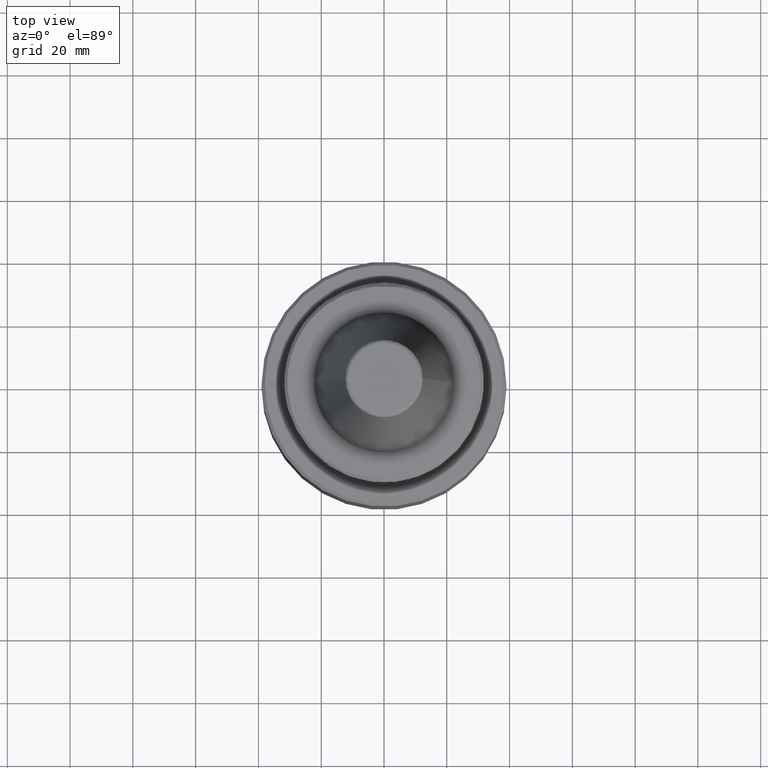
[diagram: clean part render]
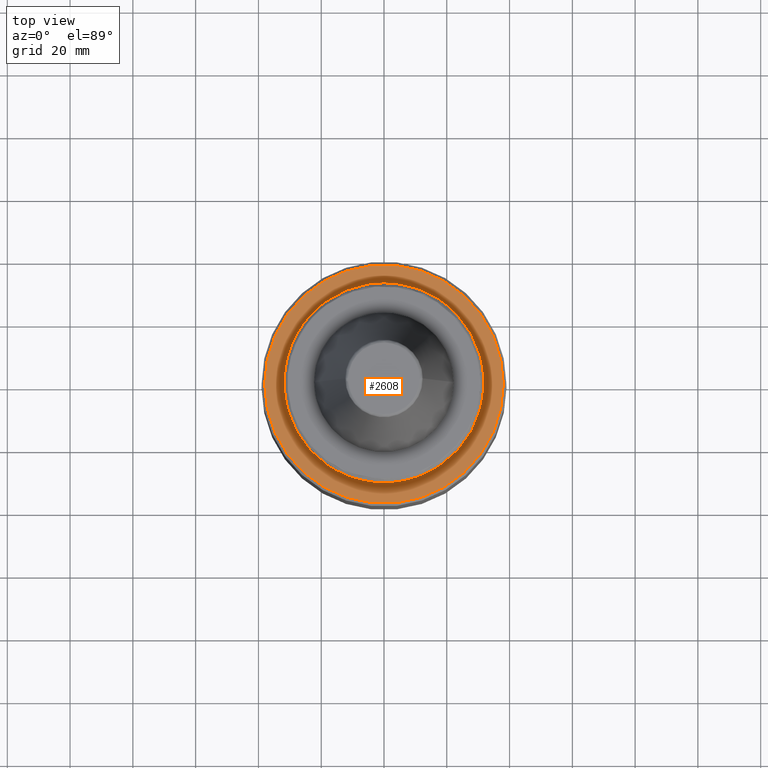
[diagram: same view with one face highlighted and labeled with its STEP entity id]
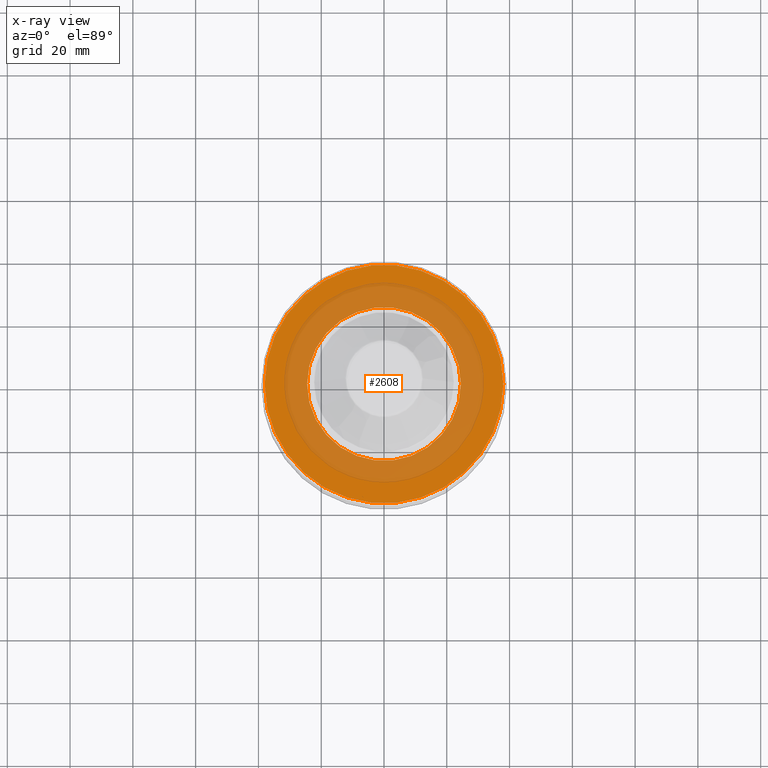
[diagram: x-ray of the same camera — body ghosted, the highlighted face saturated]
A machine part, top view. The second image highlights one B-rep face of the part: STEP entity #2608.
The next image is the same camera in x-ray: the body ghosted, the highlighted face saturated — about 49% of this face is hidden behind the body in this view.
In plain terms, the highlighted planar face has unit normal (0, 0, -1).
Its self-contained STEP definition (entity closure, byte-faithful):
#13 = PLANE ( 'NONE',  #3270 ) ;
#128 = VERTEX_POINT ( 'NONE', #2945 ) ;
#153 = CIRCLE ( 'NONE', #835, 38.00000000000000000 ) ;
#300 = CARTESIAN_POINT ( 'NONE',  ( 0.0000000000000000000, 0.0000000000000000000, -36.00000000000000700 ) ) ;
#541 = CIRCLE ( 'NONE', #3239, 38.00000000000000000 ) ;
#672 = CARTESIAN_POINT ( 'NONE',  ( 24.50000000000000000, 0.0000000000000000000, -36.00000000000000700 ) ) ;
#834 = DIRECTION ( 'NONE',  ( -1.000000000000000000, 0.0000000000000000000, -0.0000000000000000000 ) ) ;
#835 = AXIS2_PLACEMENT_3D ( 'NONE', #4127, #4211, #4196 ) ;
#851 = EDGE_LOOP ( 'NONE', ( #3747, #4176 ) ) ;
#1175 = EDGE_CURVE ( 'NONE', #3936, #2319, #2090, .T. ) ;
#1357 = DIRECTION ( 'NONE',  ( -1.000000000000000000, 0.0000000000000000000, 0.0000000000000000000 ) ) ;
#1490 = ORIENTED_EDGE ( 'NONE', *, *, #2227, .F. ) ;
#1578 = DIRECTION ( 'NONE',  ( 1.000000000000000000, 0.0000000000000000000, 0.0000000000000000000 ) ) ;
#1619 = EDGE_CURVE ( 'NONE', #128, #4126, #541, .T. ) ;
#1704 = EDGE_LOOP ( 'NONE', ( #3354, #1490 ) ) ;
#2090 = CIRCLE ( 'NONE', #2412, 24.50000000000000000 ) ;
#2138 = EDGE_CURVE ( 'NONE', #4126, #128, #153, .T. ) ;
#2208 = DIRECTION ( 'NONE',  ( 0.0000000000000000000, 0.0000000000000000000, -1.000000000000000000 ) ) ;
#2227 = EDGE_CURVE ( 'NONE', #2319, #3936, #2736, .T. ) ;
#2235 = DIRECTION ( 'NONE',  ( 1.000000000000000000, 0.0000000000000000000, 0.0000000000000000000 ) ) ;
#2319 = VERTEX_POINT ( 'NONE', #4187 ) ;
#2412 = AXIS2_PLACEMENT_3D ( 'NONE', #3905, #4256, #2235 ) ;
#2465 = DIRECTION ( 'NONE',  ( 0.0000000000000000000, 0.0000000000000000000, 1.000000000000000000 ) ) ;
#2472 = CARTESIAN_POINT ( 'NONE',  ( 0.0000000000000000000, 0.0000000000000000000, -36.00000000000000700 ) ) ;
#2608 = ADVANCED_FACE ( 'NONE', ( #2653, #3530 ), #13, .F. ) ;
#2653 = FACE_OUTER_BOUND ( 'NONE', #851, .T. ) ;
#2736 = CIRCLE ( 'NONE', #3453, 24.50000000000000000 ) ;
#2945 = CARTESIAN_POINT ( 'NONE',  ( 38.00000000000000000, 4.714890176717310300E-015, -36.00000000000000700 ) ) ;
#3136 = CARTESIAN_POINT ( 'NONE',  ( -38.00000000000000000, 0.0000000000000000000, -36.00000000000000700 ) ) ;
#3239 = AXIS2_PLACEMENT_3D ( 'NONE', #300, #2208, #1357 ) ;
#3270 = AXIS2_PLACEMENT_3D ( 'NONE', #3861, #4230, #834 ) ;
#3354 = ORIENTED_EDGE ( 'NONE', *, *, #1175, .F. ) ;
#3453 = AXIS2_PLACEMENT_3D ( 'NONE', #2472, #2465, #1578 ) ;
#3530 = FACE_BOUND ( 'NONE', #1704, .T. ) ;
#3747 = ORIENTED_EDGE ( 'NONE', *, *, #2138, .F. ) ;
#3861 = CARTESIAN_POINT ( 'NONE',  ( 0.0000000000000000000, 24.50000000000000000, -36.00000000000001400 ) ) ;
#3905 = CARTESIAN_POINT ( 'NONE',  ( 0.0000000000000000000, 0.0000000000000000000, -36.00000000000000700 ) ) ;
#3936 = VERTEX_POINT ( 'NONE', #672 ) ;
#4126 = VERTEX_POINT ( 'NONE', #3136 ) ;
#4127 = CARTESIAN_POINT ( 'NONE',  ( 0.0000000000000000000, 0.0000000000000000000, -36.00000000000000700 ) ) ;
#4176 = ORIENTED_EDGE ( 'NONE', *, *, #1619, .F. ) ;
#4187 = CARTESIAN_POINT ( 'NONE',  ( -24.50000000000000000, 3.000384657911015500E-015, -36.00000000000000700 ) ) ;
#4196 = DIRECTION ( 'NONE',  ( -1.000000000000000000, 0.0000000000000000000, 0.0000000000000000000 ) ) ;
#4211 = DIRECTION ( 'NONE',  ( 0.0000000000000000000, 0.0000000000000000000, -1.000000000000000000 ) ) ;
#4230 = DIRECTION ( 'NONE',  ( 0.0000000000000000000, 0.0000000000000000000, -1.000000000000000000 ) ) ;
#4256 = DIRECTION ( 'NONE',  ( 0.0000000000000000000, 0.0000000000000000000, 1.000000000000000000 ) ) ;